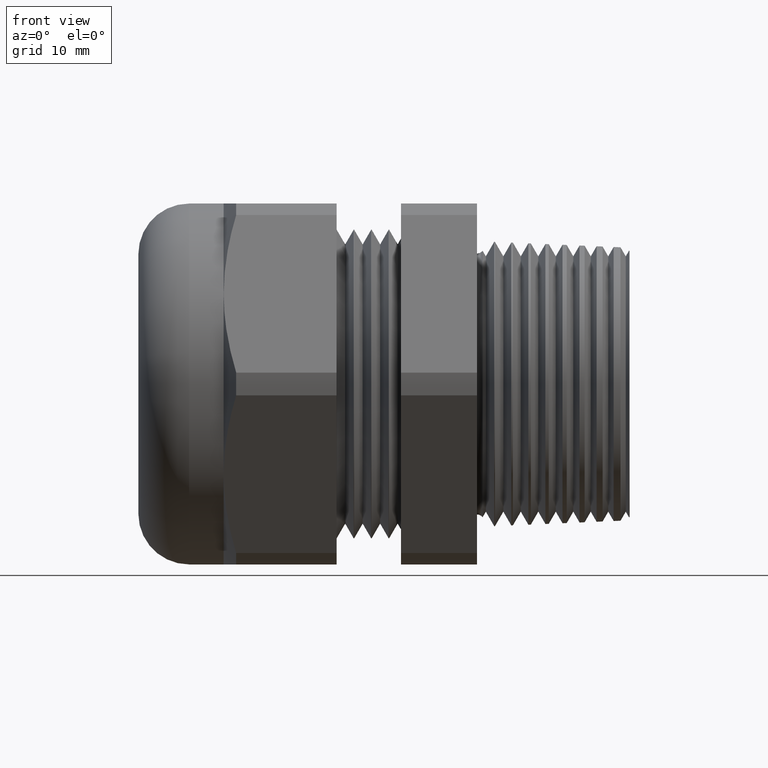
[diagram: clean part render]
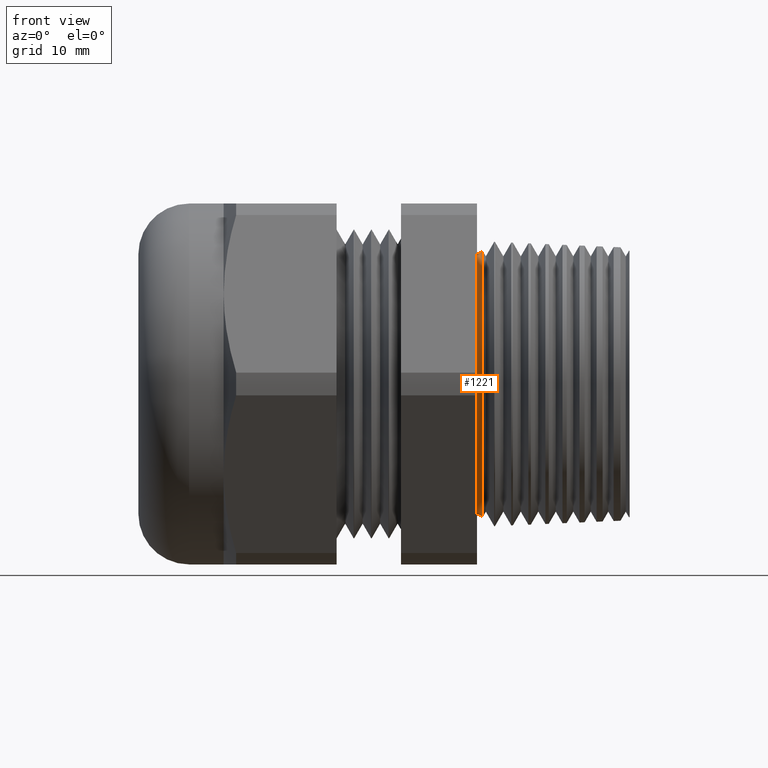
[diagram: same view with one face highlighted and labeled with its STEP entity id]
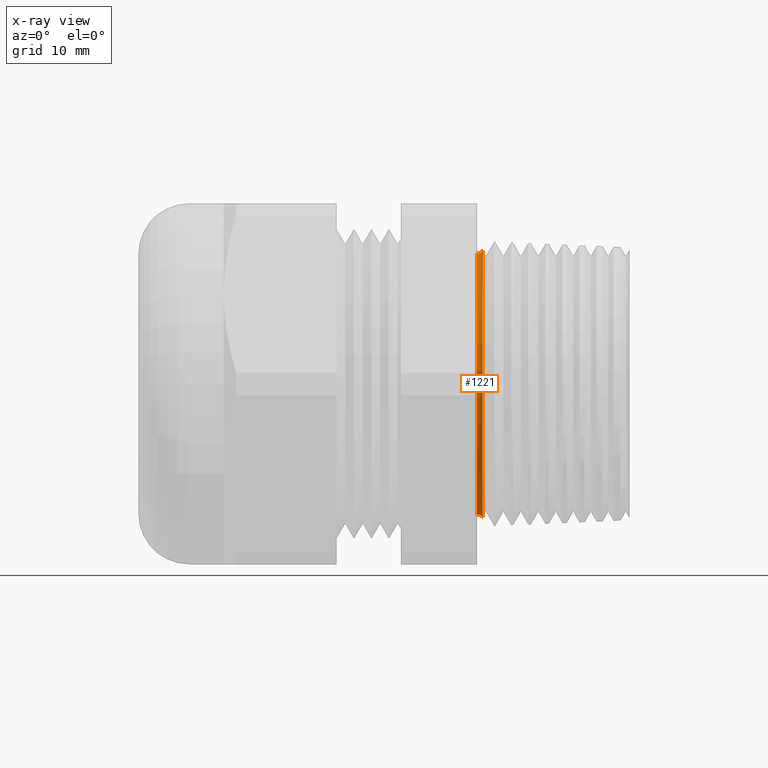
[diagram: x-ray of the same camera — body ghosted, the highlighted face saturated]
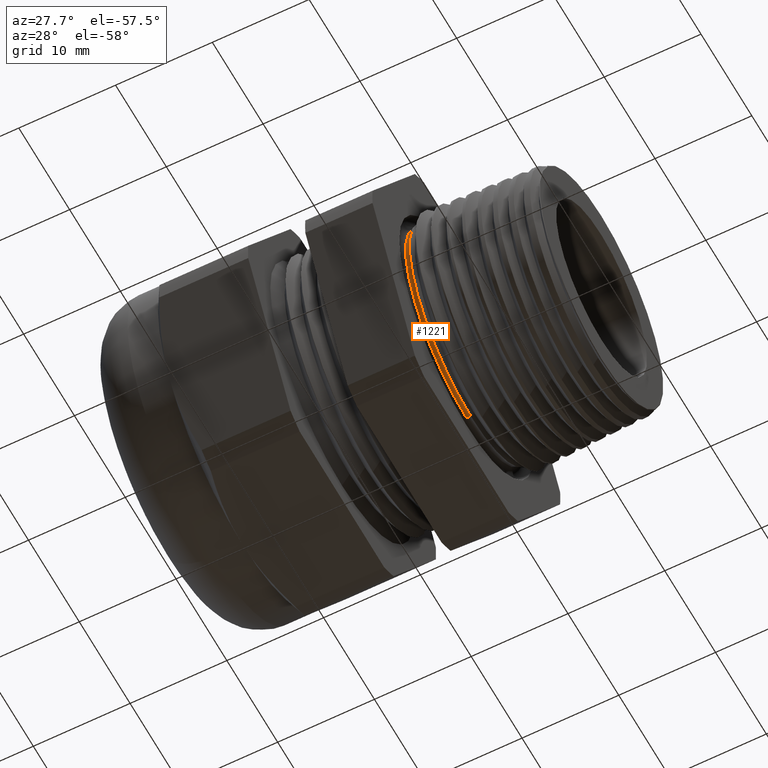
[diagram: same view with one face highlighted and labeled with its STEP entity id]
A machine part, front view. The second image highlights one B-rep face of the part: STEP entity #1221.
The next image is the same camera in x-ray: the body ghosted, the highlighted face saturated — about 0% of this face is hidden behind the body in this view.
A second angle (auxiliary view) of the same face is appended — the face is thin or edge-on in the first view.
In plain terms, the highlighted toroidal blend (fillet) surface has major radius 12.573 mm and minor (blend) radius 0.635 mm.
Its self-contained STEP definition (entity closure, byte-faithful):
#1217 = EDGE_CURVE ( 'NONE', #1218, #1278, #3484, .T. ) ;
#1218 = VERTEX_POINT ( 'NONE', #3479 ) ;
#1221 = ADVANCED_FACE ( 'NONE', ( #3473 ), #3472, .F. ) ;
#1222 = EDGE_LOOP ( 'NONE', ( #1223, #1224, #1226, #1227 ) ) ;
#1223 = ORIENTED_EDGE ( 'NONE', *, *, #1217, .T. ) ;
#1224 = ORIENTED_EDGE ( 'NONE', *, *, #1225, .T. ) ;
#1225 = EDGE_CURVE ( 'NONE', #1278, #1275, #3529, .T. ) ;
#1226 = ORIENTED_EDGE ( 'NONE', *, *, #1273, .F. ) ;
#1227 = ORIENTED_EDGE ( 'NONE', *, *, #1228, .F. ) ;
#1228 = EDGE_CURVE ( 'NONE', #1218, #1274, #3524, .T. ) ;
#1273 = EDGE_CURVE ( 'NONE', #1274, #1275, #3569, .T. ) ;
#1274 = VERTEX_POINT ( 'NONE', #3565 ) ;
#1275 = VERTEX_POINT ( 'NONE', #3564 ) ;
#1278 = VERTEX_POINT ( 'NONE', #3620 ) ;
#3468 = DIRECTION ( 'NONE',  ( 0.0000000000000000000, 0.0000000000000000000, -1.000000000000000000 ) ) ;
#3469 = DIRECTION ( 'NONE',  ( 1.000000000000000000, 0.0000000000000000000, 0.0000000000000000000 ) ) ;
#3470 = CARTESIAN_POINT ( 'NONE',  ( 0.0000000000000000000, 0.0000000000000000000, 0.0000000000000000000 ) ) ;
#3471 = AXIS2_PLACEMENT_3D ( 'NONE', #3470, #3469, #3468 ) ;
#3472 = TOROIDAL_SURFACE ( 'NONE', #3471, 0.4950000000000000500, 0.02499999999999983500 ) ;
#3473 = FACE_OUTER_BOUND ( 'NONE', #1222, .T. ) ;
#3479 = CARTESIAN_POINT ( 'NONE',  ( 0.02011669327523417000, 0.0000000000000000000, 0.4801568651670146100 ) ) ;
#3480 = DIRECTION ( 'NONE',  ( 0.0000000000000000000, 1.224646799147352200E-016, 1.000000000000000000 ) ) ;
#3481 = DIRECTION ( 'NONE',  ( 0.0000000000000000000, 1.000000000000000000, -1.224646799147353200E-016 ) ) ;
#3482 = CARTESIAN_POINT ( 'NONE',  ( 0.0000000000000000000, 6.062001655779398500E-017, 0.4950000000000000500 ) ) ;
#3483 = AXIS2_PLACEMENT_3D ( 'NONE', #3482, #3481, #3480 ) ;
#3484 = CIRCLE ( 'NONE', #3483, 0.02499999999999987000 ) ;
#3520 = DIRECTION ( 'NONE',  ( 0.0000000000000000000, 0.0000000000000000000, 1.000000000000000000 ) ) ;
#3521 = DIRECTION ( 'NONE',  ( 1.000000000000000000, 0.0000000000000000000, 0.0000000000000000000 ) ) ;
#3522 = CARTESIAN_POINT ( 'NONE',  ( 0.02011669327523417000, 0.0000000000000000000, 0.0000000000000000000 ) ) ;
#3523 = AXIS2_PLACEMENT_3D ( 'NONE', #3522, #3521, #3520 ) ;
#3524 = CIRCLE ( 'NONE', #3523, 0.4801568651670146100 ) ;
#3525 = DIRECTION ( 'NONE',  ( 0.0000000000000000000, 0.0000000000000000000, -1.000000000000000000 ) ) ;
#3526 = DIRECTION ( 'NONE',  ( 1.000000000000000000, 0.0000000000000000000, 0.0000000000000000000 ) ) ;
#3527 = CARTESIAN_POINT ( 'NONE',  ( -3.061616997868362800E-018, 0.0000000000000000000, 0.0000000000000000000 ) ) ;
#3528 = AXIS2_PLACEMENT_3D ( 'NONE', #3527, #3526, #3525 ) ;
#3529 = CIRCLE ( 'NONE', #3528, 0.4700000000000002000 ) ;
#3564 = CARTESIAN_POINT ( 'NONE',  ( -3.061616997868358500E-018, 0.0000000000000000000, -0.4700000000000002000 ) ) ;
#3565 = CARTESIAN_POINT ( 'NONE',  ( 0.02011669327523417000, 5.880225680154116300E-017, -0.4801568651670146100 ) ) ;
#3566 = DIRECTION ( 'NONE',  ( 0.0000000000000000000, 0.0000000000000000000, -1.000000000000000000 ) ) ;
#3567 = DIRECTION ( 'NONE',  ( 0.0000000000000000000, -1.000000000000000000, 0.0000000000000000000 ) ) ;
#3568 = AXIS2_PLACEMENT_3D ( 'NONE', #3574, #3567, #3566 ) ;
#3569 = CIRCLE ( 'NONE', #3568, 0.02499999999999987000 ) ;
#3574 = CARTESIAN_POINT ( 'NONE',  ( 0.0000000000000000000, 0.0000000000000000000, -0.4950000000000000500 ) ) ;
#3620 = CARTESIAN_POINT ( 'NONE',  ( -3.061616997868358500E-018, 5.755839955992562100E-017, 0.4700000000000002000 ) ) ;